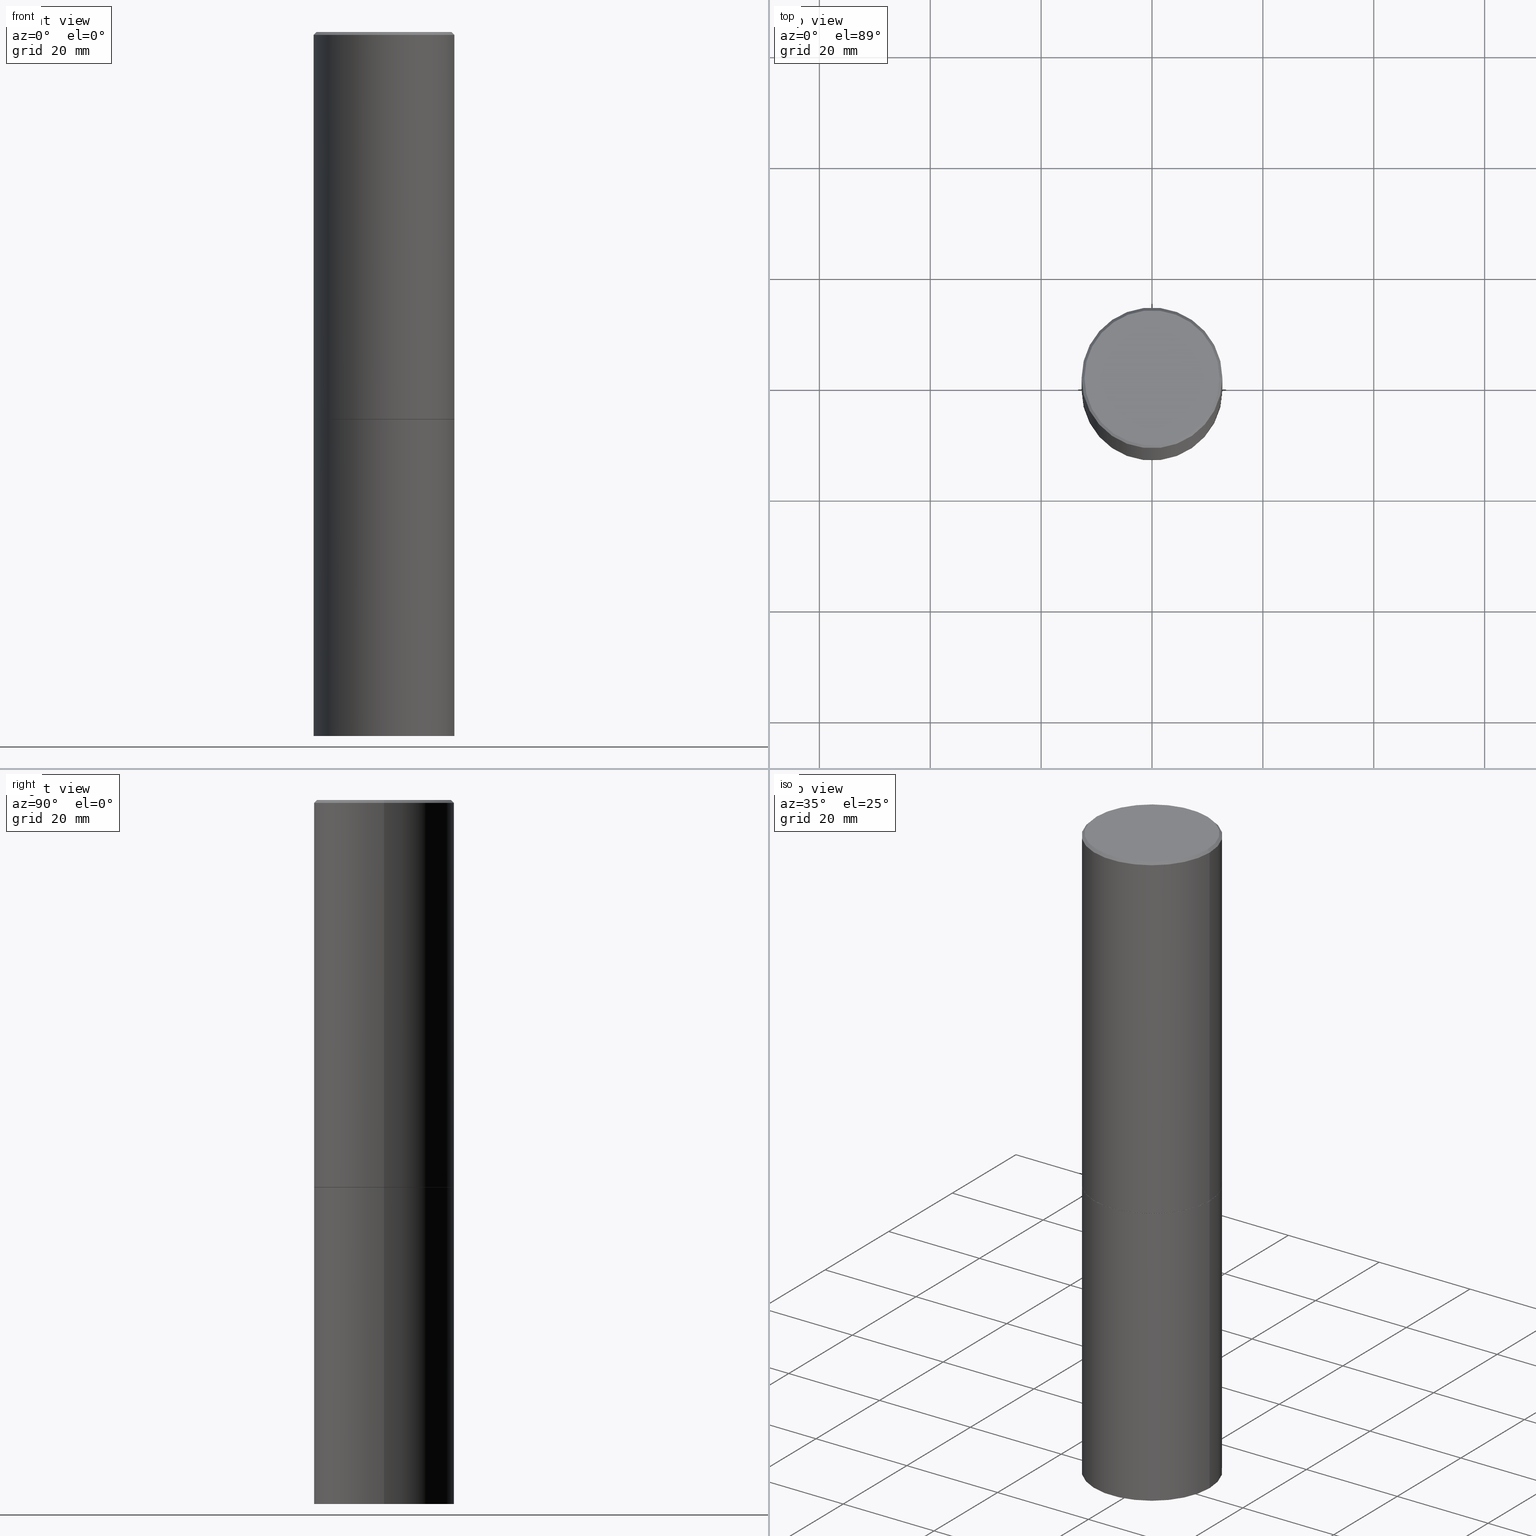
[diagram: canonical four-view strip — front | top / right | iso, engineering-drawing reading convention]
A machine part, canonical four-view strip (front | top / right | iso — engineering-drawing reading convention). The complete STEP part file that produces these views, byte-faithful:
ISO-10303-21;
HEADER;
FILE_DESCRIPTION (( 'STEP AP203' ),
    '1' );
FILE_NAME ('31819.STEP',
    '2024-02-27T13:43:03',
    ( '' ),
    ( '' ),
    'SwSTEP 2.0',
    'SolidWorks 2023',
    '' );
FILE_SCHEMA (( 'CONFIG_CONTROL_DESIGN' ));
ENDSEC;

DATA;
#1 = CARTESIAN_POINT ( 'NONE',  ( 6.725039217009125641E-29, -9.601573681818653015E-15, -2.750000000000000444 ) ) ;
#2 = ORIENTED_EDGE ( 'NONE', *, *, #330, .T. ) ;
#3 = DIRECTION ( 'NONE',  ( 1.000000000000000000, -6.982962677686266711E-15, 0.000000000000000000 ) ) ;
#4 = VERTEX_POINT ( 'NONE', #275 ) ;
#5 = EDGE_CURVE ( 'NONE', #101, #349, #46, .T. ) ;
#6 = CARTESIAN_POINT ( 'NONE',  ( -3.131554243005659264E-46, 4.471029511141341874E-32, 1.280553747030123384E-17 ) ) ;
#7 = VERTEX_POINT ( 'NONE', #15 ) ;
#8 = ORIENTED_EDGE ( 'NONE', *, *, #23, .F. ) ;
#9 = APPROVAL_DATE_TIME ( #162, #229 ) ;
#10 = CIRCLE ( 'NONE', #221, 0.5000000000000000000 ) ;
#11 = EDGE_CURVE ( 'NONE', #341, #71, #163, .T. ) ;
#12 = EDGE_LOOP ( 'NONE', ( #296, #347, #132, #8 ) ) ;
#13 = LOCAL_TIME ( 8, 43, 3.000000000000000000, #74 ) ;
#14 = APPROVAL_ROLE ( '' ) ;
#15 = CARTESIAN_POINT ( 'NONE',  ( 0.5000000000000001110, -1.308956353932294179E-14, -2.749000000000000110 ) ) ;
#16 = PERSON_AND_ORGANIZATION ( #25, #109 ) ;
#17 = EDGE_LOOP ( 'NONE', ( #210, #194 ) ) ;
#18 = APPROVAL_DATE_TIME ( #274, #286 ) ;
#19 = CARTESIAN_POINT ( 'NONE',  ( 0.4999999999999996114, -3.500078625662626318E-15, -0.02000000000000010797 ) ) ;
#20 = CARTESIAN_POINT ( 'NONE',  ( 1.222734403092568523E-28, -1.745740669421572989E-14, -5.000000000000000000 ) ) ;
#21 = DIRECTION ( 'NONE',  ( -2.445468806185136597E-29, 3.491481338843145583E-15, 1.000000000000000000 ) ) ;
#22 = DIRECTION ( 'NONE',  ( -2.445468806185136877E-29, 3.491481338843145188E-15, 1.000000000000000000 ) ) ;
#23 = EDGE_CURVE ( 'NONE', #7, #349, #48, .T. ) ;
#24 = SHAPE_DEFINITION_REPRESENTATION ( #122, #269 ) ;
#25 = PERSON ( 'UNSPECIFIED', 'UNSPECIFIED', 'UNSPECIFIED', ('UNSPECIFIED'), ('UNSPECIFIED'), ('UNSPECIFIED') ) ;
#26 = CARTESIAN_POINT ( 'NONE',  ( -0.4999999999999996114, 3.421651712066267296E-15, -0.02000000000000010797 ) ) ;
#27 = CARTESIAN_POINT ( 'NONE',  ( 0.000000000000000000, 0.000000000000000000, 0.000000000000000000 ) ) ;
#28 = ADVANCED_FACE ( 'NONE', ( #76 ), #95, .T. ) ;
#29 = DIRECTION ( 'NONE',  ( -2.445468806185136597E-29, 3.491481338843145583E-15, 1.000000000000000000 ) ) ;
#30 = APPROVAL_PERSON_ORGANIZATION ( #264, #166, #142 ) ;
#31 = CARTESIAN_POINT ( 'NONE',  ( 0.5000000000000000000, -1.309305502066178321E-14, -2.750000000000000000 ) ) ;
#32 = APPLICATION_CONTEXT ( 'configuration controlled 3d designs of mechanical parts and assemblies' ) ;
#33 = EDGE_LOOP ( 'NONE', ( #208, #343 ) ) ;
#34 = PRODUCT ( '31819', '31819', '', ( #209 ) ) ;
#35 = ADVANCED_FACE ( 'NONE', ( #196 ), #303, .F. ) ;
#36 = DIRECTION ( 'NONE',  ( 1.000000000000000000, -6.982962677686266711E-15, 0.000000000000000000 ) ) ;
#37 = ORIENTED_EDGE ( 'NONE', *, *, #340, .T. ) ;
#38 = VECTOR ( 'NONE', #322, 39.37007874015748143 ) ;
#39 = DIRECTION ( 'NONE',  ( 1.000000000000000000, -6.982962677686269077E-15, 0.000000000000000000 ) ) ;
#40 = LOCAL_TIME ( 8, 43, 3.000000000000000000, #358 ) ;
#41 = ORIENTED_EDGE ( 'NONE', *, *, #333, .T. ) ;
#42 = EDGE_CURVE ( 'NONE', #4, #341, #276, .T. ) ;
#43 = DATE_TIME_ROLE ( 'creation_date' ) ;
#44 = EDGE_LOOP ( 'NONE', ( #192, #219, #67, #106 ) ) ;
#45 = CALENDAR_DATE ( 2024, 27, 2 ) ;
#46 = LINE ( 'NONE', #19, #202 ) ;
#47 = PERSON_AND_ORGANIZATION_ROLE ( 'design_owner' ) ;
#48 = LINE ( 'NONE', #161, #317 ) ;
#49 = CC_DESIGN_PERSON_AND_ORGANIZATION_ASSIGNMENT ( #96, #105, ( #84 ) ) ;
#50 = CALENDAR_DATE ( 2024, 27, 2 ) ;
#51 = VERTEX_POINT ( 'NONE', #190 ) ;
#52 = CARTESIAN_POINT ( 'NONE',  ( 6.725039217009124520E-29, -9.601573681818649859E-15, -2.750000000000000000 ) ) ;
#53 =( GEOMETRIC_REPRESENTATION_CONTEXT ( 3 ) GLOBAL_UNCERTAINTY_ASSIGNED_CONTEXT ( ( #336 ) ) GLOBAL_UNIT_ASSIGNED_CONTEXT ( ( #366, #227, #86 ) ) REPRESENTATION_CONTEXT ( 'NONE', 'WORKASPACE' ) );
#54 = CARTESIAN_POINT ( 'NONE',  ( -0.5000000000000000000, 3.552713678800500929E-15, -2.459467545127452891E-29 ) ) ;
#55 = DIRECTION ( 'NONE',  ( 2.438088387897960049E-29, -3.491481338843145188E-15, -1.000000000000000000 ) ) ;
#56 = DIRECTION ( 'NONE',  ( 1.000000000000000000, -6.982962677686266711E-15, 0.000000000000000000 ) ) ;
#57 = CIRCLE ( 'NONE', #260, 0.4799999999999995381 ) ;
#58 = LOCAL_TIME ( 8, 43, 3.000000000000000000, #98 ) ;
#59 = CARTESIAN_POINT ( 'NONE',  ( 3.491481338843255234E-15, 0.4999999999999825140, -5.000000000000002665 ) ) ;
#60 = DIRECTION ( 'NONE',  ( -2.445468806185136597E-29, 3.491481338843145583E-15, 1.000000000000000000 ) ) ;
#61 = ORIENTED_EDGE ( 'NONE', *, *, #42, .F. ) ;
#62 = AXIS2_PLACEMENT_3D ( 'NONE', #203, #108, #110 ) ;
#63 = CARTESIAN_POINT ( 'NONE',  ( 0.4999999999999996114, -3.500078625662626318E-15, -0.02000000000000010797 ) ) ;
#64 = DIRECTION ( 'NONE',  ( -2.445468806185136597E-29, 3.491481338843145583E-15, 1.000000000000000000 ) ) ;
#65 = EDGE_LOOP ( 'NONE', ( #185, #37, #187, #323 ) ) ;
#66 = APPROVAL_ROLE ( '' ) ;
#67 = ORIENTED_EDGE ( 'NONE', *, *, #313, .T. ) ;
#68 = PERSON_AND_ORGANIZATION ( #25, #109 ) ;
#69 = DIRECTION ( 'NONE',  ( 2.438088387897960049E-29, -3.491481338843145188E-15, -1.000000000000000000 ) ) ;
#70 = PERSON_AND_ORGANIZATION ( #25, #109 ) ;
#71 = VERTEX_POINT ( 'NONE', #213 ) ;
#72 = ADVANCED_FACE ( 'NONE', ( #129 ), #239, .T. ) ;
#73 = ORIENTED_EDGE ( 'NONE', *, *, #111, .F. ) ;
#74 = COORDINATED_UNIVERSAL_TIME_OFFSET ( 5, 0, .BEHIND. ) ;
#75 = ORIENTED_EDGE ( 'NONE', *, *, #5, .F. ) ;
#76 = FACE_OUTER_BOUND ( 'NONE', #44, .T. ) ;
#77 = DIRECTION ( 'NONE',  ( 1.000000000000000000, -6.982962677686269077E-15, 0.000000000000000000 ) ) ;
#78 = AXIS2_PLACEMENT_3D ( 'NONE', #244, #272, #270 ) ;
#79 = EDGE_CURVE ( 'NONE', #228, #349, #256, .T. ) ;
#80 = FACE_OUTER_BOUND ( 'NONE', #243, .T. ) ;
#81 = DIRECTION ( 'NONE',  ( 0.7071067811864509833, -2.468850131081245741E-15, 0.7071067811866440511 ) ) ;
#82 = CARTESIAN_POINT ( 'NONE',  ( 6.725039217009124520E-29, -9.601573681818649859E-15, -2.750000000000000000 ) ) ;
#83 = AXIS2_PLACEMENT_3D ( 'NONE', #189, #135, #357 ) ;
#84 = SECURITY_CLASSIFICATION ( '', '', #268 ) ;
#85 = DIRECTION ( 'NONE',  ( 1.000000000000000000, -6.982962677686267499E-15, 4.876176775795936353E-29 ) ) ;
#86 =( NAMED_UNIT ( * ) SI_UNIT ( $, .STERADIAN. ) SOLID_ANGLE_UNIT ( ) );
#87 = ORIENTED_EDGE ( 'NONE', *, *, #259, .F. ) ;
#88 = ORIENTED_EDGE ( 'NONE', *, *, #316, .F. ) ;
#89 = ADVANCED_FACE ( 'NONE', ( #103 ), #211, .F. ) ;
#90 = AXIS2_PLACEMENT_3D ( 'NONE', #249, #21, #107 ) ;
#91 = PRODUCT_DEFINITION_FORMATION_WITH_SPECIFIED_SOURCE ( 'ANY', '', #34, .NOT_KNOWN. ) ;
#92 = APPLICATION_PROTOCOL_DEFINITION ( 'international standard', 'config_control_design', 1994, #32 ) ;
#93 = EDGE_LOOP ( 'NONE', ( #61, #217 ) ) ;
#94 = VERTEX_POINT ( 'NONE', #335 ) ;
#95 = CONICAL_SURFACE ( 'NONE', #83, 0.4999999999999996114, 0.7853981633974468357 ) ;
#96 = PERSON_AND_ORGANIZATION ( #25, #109 ) ;
#97 = DIRECTION ( 'NONE',  ( 1.000000000000000000, -6.982962677686266711E-15, 4.876176775795935793E-29 ) ) ;
#98 = COORDINATED_UNIVERSAL_TIME_OFFSET ( 5, 0, .BEHIND. ) ;
#99 = ORIENTED_EDGE ( 'NONE', *, *, #184, .F. ) ;
#100 = ADVANCED_FACE ( 'NONE', ( #143 ), #255, .T. ) ;
#101 = VERTEX_POINT ( 'NONE', #306 ) ;
#102 = CALENDAR_DATE ( 2024, 27, 2 ) ;
#103 = FACE_OUTER_BOUND ( 'NONE', #17, .T. ) ;
#104 = LOCAL_TIME ( 8, 43, 3.000000000000000000, #188 ) ;
#105 = PERSON_AND_ORGANIZATION_ROLE ( 'classification_officer' ) ;
#106 = ORIENTED_EDGE ( 'NONE', *, *, #212, .F. ) ;
#107 = DIRECTION ( 'NONE',  ( 1.000000000000000000, -6.982962677686266711E-15, 4.876176775795935793E-29 ) ) ;
#108 = DIRECTION ( 'NONE',  ( 2.438088387897960049E-29, -3.491481338843145188E-15, -1.000000000000000000 ) ) ;
#109 = ORGANIZATION ( 'UNSPECIFIED', 'UNSPECIFIED', '' ) ;
#110 = DIRECTION ( 'NONE',  ( -1.000000000000000000, 6.982962677686265922E-15, -4.876176775795935793E-29 ) ) ;
#111 = EDGE_CURVE ( 'NONE', #7, #71, #115, .T. ) ;
#112 = CC_DESIGN_PERSON_AND_ORGANIZATION_ASSIGNMENT ( #136, #131, ( #91 ) ) ;
#113 = DIRECTION ( 'NONE',  ( -0.7071067811865464625, 2.468850131082245622E-15, -0.7071067811865485719 ) ) ;
#114 = FACE_OUTER_BOUND ( 'NONE', #12, .T. ) ;
#115 = CIRCLE ( 'NONE', #365, 0.5000000000000001110 ) ;
#116 = FACE_OUTER_BOUND ( 'NONE', #151, .T. ) ;
#117 = PRODUCT_DEFINITION ( 'UNKNOWN', '', #91, #204 ) ;
#118 = CARTESIAN_POINT ( 'NONE',  ( 4.890937612370299433E-31, -6.982962677686328587E-17, -0.02000000000000010797 ) ) ;
#119 = VERTEX_POINT ( 'NONE', #364 ) ;
#120 = DIRECTION ( 'NONE',  ( 2.445468806185136597E-29, -3.491481338843145583E-15, -1.000000000000000000 ) ) ;
#121 = ORIENTED_EDGE ( 'NONE', *, *, #278, .F. ) ;
#122 = PRODUCT_DEFINITION_SHAPE ( 'NONE', 'NONE',  #117 ) ;
#123 = AXIS2_PLACEMENT_3D ( 'NONE', #321, #69, #297 ) ;
#124 = CONICAL_SURFACE ( 'NONE', #346, 0.4989999999999999991, 0.7853981633973118326 ) ;
#125 = DIRECTION ( 'NONE',  ( -2.445468806185136597E-29, 3.491481338843145583E-15, 1.000000000000000000 ) ) ;
#126 = ADVANCED_FACE ( 'NONE', ( #283 ), #175, .F. ) ;
#127 = CC_DESIGN_DATE_AND_TIME_ASSIGNMENT ( #186, #295, ( #84 ) ) ;
#128 = ORIENTED_EDGE ( 'NONE', *, *, #79, .T. ) ;
#129 = FACE_OUTER_BOUND ( 'NONE', #351, .T. ) ;
#130 = AXIS2_PLACEMENT_3D ( 'NONE', #200, #147, #199 ) ;
#131 = PERSON_AND_ORGANIZATION_ROLE ( 'creator' ) ;
#132 = ORIENTED_EDGE ( 'NONE', *, *, #313, .F. ) ;
#133 = DIRECTION ( 'NONE',  ( -2.445468806185136597E-29, 3.491481338843145583E-15, 1.000000000000000000 ) ) ;
#134 = DIMENSIONAL_EXPONENTS ( 1.000000000000000000, 0.000000000000000000, 0.000000000000000000, 0.000000000000000000, 0.000000000000000000, 0.000000000000000000, 0.000000000000000000 ) ;
#135 = DIRECTION ( 'NONE',  ( 2.445468806185136597E-29, -3.491481338843145583E-15, -1.000000000000000000 ) ) ;
#136 = PERSON_AND_ORGANIZATION ( #25, #109 ) ;
#137 = AXIS2_PLACEMENT_3D ( 'NONE', #52, #246, #169 ) ;
#138 = AXIS2_PLACEMENT_3D ( 'NONE', #314, #230, #345 ) ;
#139 = DIRECTION ( 'NONE',  ( 0.7071067811865464625, -7.319954787623252890E-15, -0.7071067811865485719 ) ) ;
#140 = CYLINDRICAL_SURFACE ( 'NONE', #90, 0.5000000000000000000 ) ;
#141 = DIRECTION ( 'NONE',  ( -2.445468806185136877E-29, 3.491481338843145188E-15, 1.000000000000000000 ) ) ;
#142 = APPROVAL_ROLE ( '' ) ;
#143 = FACE_OUTER_BOUND ( 'NONE', #293, .T. ) ;
#144 = EDGE_CURVE ( 'NONE', #101, #300, #232, .T. ) ;
#145 = DIRECTION ( 'NONE',  ( -2.445468806185136597E-29, 3.491481338843145583E-15, 1.000000000000000000 ) ) ;
#146 = APPROVAL_DATE_TIME ( #305, #166 ) ;
#147 = DIRECTION ( 'NONE',  ( -2.445468806185136597E-29, 3.491481338843145583E-15, 1.000000000000000000 ) ) ;
#148 = DIRECTION ( 'NONE',  ( -2.445468806185136597E-29, 3.491481338843145583E-15, 1.000000000000000000 ) ) ;
#149 = CARTESIAN_POINT ( 'NONE',  ( 6.725039217009125641E-29, -9.601573681818653015E-15, -2.750000000000000444 ) ) ;
#150 = ADVANCED_FACE ( 'NONE', ( #114 ), #362, .T. ) ;
#151 = EDGE_LOOP ( 'NONE', ( #75, #88, #236, #128 ) ) ;
#152 = AXIS2_PLACEMENT_3D ( 'NONE', #59, #55, #334 ) ;
#153 = CC_DESIGN_SECURITY_CLASSIFICATION ( #84, ( #91 ) ) ;
#154 = DIRECTION ( 'NONE',  ( -1.000000000000000000, 6.982962677686266711E-15, 0.000000000000000000 ) ) ;
#155 = ORIENTED_EDGE ( 'NONE', *, *, #290, .F. ) ;
#156 = ORIENTED_EDGE ( 'NONE', *, *, #206, .T. ) ;
#157 = APPLICATION_PROTOCOL_DEFINITION ( 'international standard', 'config_control_design', 1994, #285 ) ;
#158 = DIRECTION ( 'NONE',  ( -2.445468806185136597E-29, 3.491481338843145583E-15, 1.000000000000000000 ) ) ;
#159 = VECTOR ( 'NONE', #81, 39.37007874015748143 ) ;
#160 = ADVANCED_FACE ( 'NONE', ( #80 ), #197, .T. ) ;
#161 = CARTESIAN_POINT ( 'NONE',  ( 0.4999999999999998335, -3.491481338843132566E-15, 2.438088387897967336E-29 ) ) ;
#162 = DATE_AND_TIME ( #102, #58 ) ;
#163 = LINE ( 'NONE', #329, #38 ) ;
#164 = DIRECTION ( 'NONE',  ( -2.445468806185136877E-29, 3.491481338843145188E-15, 1.000000000000000000 ) ) ;
#165 = EDGE_CURVE ( 'NONE', #71, #7, #287, .T. ) ;
#166 = APPROVAL ( #242, 'UNSPECIFIED' ) ;
#167 = AXIS2_PLACEMENT_3D ( 'NONE', #171, #205, #85 ) ;
#168 = APPROVAL_PERSON_ORGANIZATION ( #68, #286, #66 ) ;
#169 = DIRECTION ( 'NONE',  ( 1.000000000000000000, -6.982962677686265922E-15, 4.876176775795935793E-29 ) ) ;
#170 = DIRECTION ( 'NONE',  ( -2.445468806185136877E-29, 3.491481338843145188E-15, 1.000000000000000000 ) ) ;
#171 = CARTESIAN_POINT ( 'NONE',  ( 0.000000000000000000, 0.000000000000000000, 0.000000000000000000 ) ) ;
#172 = CARTESIAN_POINT ( 'NONE',  ( 0.5000000000000000000, -3.491481338843133355E-15, 2.438088387897967896E-29 ) ) ;
#173 = CIRCLE ( 'NONE', #267, 0.5000000000000000000 ) ;
#174 = CONICAL_SURFACE ( 'NONE', #261, 0.4999999999999996114, 0.7853981633974468357 ) ;
#175 = PLANE ( 'NONE',  #62 ) ;
#176 = DIRECTION ( 'NONE',  ( -2.445468806185136597E-29, 3.491481338843145583E-15, 1.000000000000000000 ) ) ;
#177 = CLOSED_SHELL ( 'NONE', ( #72, #238, #126, #263 ) ) ;
#178 = ORIENTED_EDGE ( 'NONE', *, *, #42, .T. ) ;
#179 = AXIS2_PLACEMENT_3D ( 'NONE', #214, #133, #97 ) ;
#180 = CIRCLE ( 'NONE', #304, 0.5000000000000000000 ) ;
#181 = CARTESIAN_POINT ( 'NONE',  ( 4.890937612370299433E-31, -6.982962677686328587E-17, -0.02000000000000010797 ) ) ;
#182 = ORIENTED_EDGE ( 'NONE', *, *, #23, .T. ) ;
#183 = DIRECTION ( 'NONE',  ( 1.000000000000000000, -6.982962677686266711E-15, 4.876036955247133888E-29 ) ) ;
#184 = EDGE_CURVE ( 'NONE', #119, #328, #363, .T. ) ;
#185 = ORIENTED_EDGE ( 'NONE', *, *, #11, .F. ) ;
#186 = DATE_AND_TIME ( #218, #104 ) ;
#187 = ORIENTED_EDGE ( 'NONE', *, *, #259, .T. ) ;
#188 = COORDINATED_UNIVERSAL_TIME_OFFSET ( 5, 0, .BEHIND. ) ;
#189 = CARTESIAN_POINT ( 'NONE',  ( 4.890937612370299433E-31, -6.982962677686328587E-17, -0.02000000000000010797 ) ) ;
#190 = CARTESIAN_POINT ( 'NONE',  ( -0.5000000000000000000, -9.976776509216688154E-15, -5.000000000000000000 ) ) ;
#191 = AXIS2_PLACEMENT_3D ( 'NONE', #292, #176, #3 ) ;
#192 = ORIENTED_EDGE ( 'NONE', *, *, #144, .F. ) ;
#193 = APPROVAL_STATUS ( 'not_yet_approved' ) ;
#194 = ORIENTED_EDGE ( 'NONE', *, *, #144, .T. ) ;
#195 = EDGE_CURVE ( 'NONE', #119, #51, #10, .T. ) ;
#196 = FACE_OUTER_BOUND ( 'NONE', #93, .T. ) ;
#197 = CONICAL_SURFACE ( 'NONE', #240, 0.4989999999999999991, 0.7853981633973118326 ) ;
#198 = CIRCLE ( 'NONE', #191, 0.5000000000000000000 ) ;
#199 = DIRECTION ( 'NONE',  ( 1.000000000000000000, -6.982962677686265133E-15, 0.000000000000000000 ) ) ;
#200 = CARTESIAN_POINT ( 'NONE',  ( 6.722593748202941159E-29, -9.598082200479808430E-15, -2.749000000000000110 ) ) ;
#201 = CARTESIAN_POINT ( 'NONE',  ( -0.4999999999999998335, 3.552713678800499746E-15, -2.459467545127452330E-29 ) ) ;
#202 = VECTOR ( 'NONE', #139, 39.37007874015748143 ) ;
#203 = CARTESIAN_POINT ( 'NONE',  ( 3.491481338843200408E-15, 0.4999999999999903411, -2.750000000000001332 ) ) ;
#204 = DESIGN_CONTEXT ( 'detailed design', #285, 'design' ) ;
#205 = DIRECTION ( 'NONE',  ( -2.445468806185136597E-29, 3.491481338843145583E-15, 1.000000000000000000 ) ) ;
#206 = EDGE_CURVE ( 'NONE', #94, #328, #173, .T. ) ;
#207 = DIRECTION ( 'NONE',  ( 1.000000000000000000, -6.982962677686266711E-15, 0.000000000000000000 ) ) ;
#208 = ORIENTED_EDGE ( 'NONE', *, *, #195, .F. ) ;
#209 = MECHANICAL_CONTEXT ( 'NONE', #32, 'mechanical' ) ;
#210 = ORIENTED_EDGE ( 'NONE', *, *, #316, .T. ) ;
#211 = PLANE ( 'NONE',  #123 ) ;
#212 = EDGE_CURVE ( 'NONE', #300, #228, #310, .T. ) ;
#213 = CARTESIAN_POINT ( 'NONE',  ( -0.5000000000000001110, -1.281242234827831779E-15, -2.749000000000000110 ) ) ;
#214 = CARTESIAN_POINT ( 'NONE',  ( 0.000000000000000000, 0.000000000000000000, 0.000000000000000000 ) ) ;
#215 = AXIS2_PLACEMENT_3D ( 'NONE', #181, #288, #207 ) ;
#216 = CC_DESIGN_APPROVAL ( #286, ( #91 ) ) ;
#217 = ORIENTED_EDGE ( 'NONE', *, *, #340, .F. ) ;
#218 = CALENDAR_DATE ( 2024, 27, 2 ) ;
#219 = ORIENTED_EDGE ( 'NONE', *, *, #5, .T. ) ;
#220 = CARTESIAN_POINT ( 'NONE',  ( -3.131554243005659264E-46, 4.471029511141341874E-32, 1.280553747030123384E-17 ) ) ;
#221 = AXIS2_PLACEMENT_3D ( 'NONE', #20, #224, #282 ) ;
#222 = DIRECTION ( 'NONE',  ( -2.445468806185136597E-29, 3.491481338843145583E-15, 1.000000000000000000 ) ) ;
#223 = CALENDAR_DATE ( 2024, 27, 2 ) ;
#224 = DIRECTION ( 'NONE',  ( -2.445468806185136597E-29, 3.491481338843145583E-15, 1.000000000000000000 ) ) ;
#225 = DIRECTION ( 'NONE',  ( -2.445468806185136597E-29, 3.491481338843145583E-15, 1.000000000000000000 ) ) ;
#226 = LINE ( 'NONE', #339, #159 ) ;
#227 =( NAMED_UNIT ( * ) PLANE_ANGLE_UNIT ( ) SI_UNIT ( $, .RADIAN. ) );
#228 = VERTEX_POINT ( 'NONE', #277 ) ;
#229 = APPROVAL ( #271, 'UNSPECIFIED' ) ;
#230 = DIRECTION ( 'NONE',  ( 0.000000000000000000, 0.000000000000000000, 1.000000000000000000 ) ) ;
#231 = ORIENTED_EDGE ( 'NONE', *, *, #11, .T. ) ;
#232 = CIRCLE ( 'NONE', #348, 0.4799999999999995381 ) ;
#233 = CC_DESIGN_APPROVAL ( #229, ( #117 ) ) ;
#234 = MANIFOLD_SOLID_BREP ( 'Body-Move/Copy2[1]', #177 ) ;
#235 = DIRECTION ( 'NONE',  ( 1.000000000000000000, -6.982962677686269077E-15, 0.000000000000000000 ) ) ;
#236 = ORIENTED_EDGE ( 'NONE', *, *, #212, .T. ) ;
#237 = MANIFOLD_SOLID_BREP ( 'Body-Move/Copy2[2]', #337 ) ;
#238 = ADVANCED_FACE ( 'NONE', ( #307 ), #331, .T. ) ;
#239 = CYLINDRICAL_SURFACE ( 'NONE', #179, 0.5000000000000000000 ) ;
#240 = AXIS2_PLACEMENT_3D ( 'NONE', #253, #60, #77 ) ;
#241 = APPROVAL_PERSON_ORGANIZATION ( #16, #229, #14 ) ;
#242 = APPROVAL_STATUS ( 'not_yet_approved' ) ;
#243 = EDGE_LOOP ( 'NONE', ( #178, #231, #73, #87 ) ) ;
#244 = CARTESIAN_POINT ( 'NONE',  ( 6.725039217009125641E-29, -9.601573681818653015E-15, -2.750000000000000444 ) ) ;
#245 = CC_DESIGN_PERSON_AND_ORGANIZATION_ASSIGNMENT ( #70, #326, ( #117 ) ) ;
#246 = DIRECTION ( 'NONE',  ( -2.438088387897960049E-29, 3.491481338843145188E-15, 1.000000000000000000 ) ) ;
#247 = PERSON_AND_ORGANIZATION ( #25, #109 ) ;
#248 = ORIENTED_EDGE ( 'NONE', *, *, #195, .T. ) ;
#249 = CARTESIAN_POINT ( 'NONE',  ( 0.000000000000000000, 0.000000000000000000, 0.000000000000000000 ) ) ;
#250 = DIRECTION ( 'NONE',  ( 1.000000000000000000, -6.982962677686265133E-15, 0.000000000000000000 ) ) ;
#251 = VECTOR ( 'NONE', #170, 39.37007874015748143 ) ;
#252 = DIRECTION ( 'NONE',  ( -2.445468806185136597E-29, 3.491481338843145583E-15, 1.000000000000000000 ) ) ;
#253 = CARTESIAN_POINT ( 'NONE',  ( 6.725039217009125641E-29, -9.601573681818653015E-15, -2.750000000000000444 ) ) ;
#254 = CC_DESIGN_DATE_AND_TIME_ASSIGNMENT ( #320, #43, ( #117 ) ) ;
#255 = CYLINDRICAL_SURFACE ( 'NONE', #167, 0.4999999999999998335 ) ;
#256 = CIRCLE ( 'NONE', #338, 0.4999999999999996114 ) ;
#257 = LENGTH_MEASURE_WITH_UNIT ( LENGTH_MEASURE( 0.02539999999999999897 ), #315 );
#258 = ORIENTED_EDGE ( 'NONE', *, *, #330, .F. ) ;
#259 = EDGE_CURVE ( 'NONE', #4, #7, #226, .T. ) ;
#260 = AXIS2_PLACEMENT_3D ( 'NONE', #6, #125, #183 ) ;
#261 = AXIS2_PLACEMENT_3D ( 'NONE', #118, #120, #154 ) ;
#262 = EDGE_LOOP ( 'NONE', ( #121, #41, #302, #289 ) ) ;
#263 = ADVANCED_FACE ( 'NONE', ( #311 ), #140, .T. ) ;
#264 = PERSON_AND_ORGANIZATION ( #25, #109 ) ;
#265 = PERSON_AND_ORGANIZATION ( #25, #109 ) ;
#266 = ORIENTED_EDGE ( 'NONE', *, *, #278, .T. ) ;
#267 = AXIS2_PLACEMENT_3D ( 'NONE', #82, #252, #56 ) ;
#268 = SECURITY_CLASSIFICATION_LEVEL ( 'unclassified' ) ;
#269 = ADVANCED_BREP_SHAPE_REPRESENTATION ( '31819', ( #234, #237, #138 ), #53 ) ;
#270 = DIRECTION ( 'NONE',  ( 1.000000000000000000, -6.982962677686269077E-15, 0.000000000000000000 ) ) ;
#271 = APPROVAL_STATUS ( 'not_yet_approved' ) ;
#272 = DIRECTION ( 'NONE',  ( -2.445468806185136597E-29, 3.491481338843145583E-15, 1.000000000000000000 ) ) ;
#273 = PRODUCT_RELATED_PRODUCT_CATEGORY ( 'detail', '', ( #34 ) ) ;
#274 = DATE_AND_TIME ( #50, #361 ) ;
#275 = CARTESIAN_POINT ( 'NONE',  ( 0.4989999999999999991, -1.308607205798410036E-14, -2.750000000000000444 ) ) ;
#276 = CIRCLE ( 'NONE', #78, 0.4989999999999999991 ) ;
#277 = CARTESIAN_POINT ( 'NONE',  ( -0.4999999999999996114, 3.421651712066267296E-15, -0.02000000000000010797 ) ) ;
#278 = EDGE_CURVE ( 'NONE', #51, #94, #359, .T. ) ;
#279 = LINE ( 'NONE', #201, #299 ) ;
#280 = CARTESIAN_POINT ( 'NONE',  ( 6.722593748202941159E-29, -9.598082200479808430E-15, -2.749000000000000110 ) ) ;
#281 = CIRCLE ( 'NONE', #325, 0.4989999999999999991 ) ;
#282 = DIRECTION ( 'NONE',  ( 1.000000000000000000, -6.982962677686266711E-15, 0.000000000000000000 ) ) ;
#283 = FACE_OUTER_BOUND ( 'NONE', #294, .T. ) ;
#284 = CARTESIAN_POINT ( 'NONE',  ( 1.222734403092568523E-28, -1.745740669421572989E-14, -5.000000000000000000 ) ) ;
#285 = APPLICATION_CONTEXT ( 'configuration controlled 3d designs of mechanical parts and assemblies' ) ;
#286 = APPROVAL ( #193, 'UNSPECIFIED' ) ;
#287 = CIRCLE ( 'NONE', #130, 0.5000000000000001110 ) ;
#288 = DIRECTION ( 'NONE',  ( -2.445468806185136597E-29, 3.491481338843145583E-15, 1.000000000000000000 ) ) ;
#289 = ORIENTED_EDGE ( 'NONE', *, *, #206, .F. ) ;
#290 = EDGE_CURVE ( 'NONE', #71, #228, #279, .T. ) ;
#291 = CARTESIAN_POINT ( 'NONE',  ( -0.4989999999999999991, -6.050666976027529114E-15, -2.750000000000000444 ) ) ;
#292 = CARTESIAN_POINT ( 'NONE',  ( 6.725039217009124520E-29, -9.601573681818649859E-15, -2.750000000000000000 ) ) ;
#293 = EDGE_LOOP ( 'NONE', ( #155, #318, #182, #298 ) ) ;
#294 = EDGE_LOOP ( 'NONE', ( #2, #156 ) ) ;
#295 = DATE_TIME_ROLE ( 'classification_date' ) ;
#296 = ORIENTED_EDGE ( 'NONE', *, *, #111, .T. ) ;
#297 = DIRECTION ( 'NONE',  ( -1.000000000000000000, 6.982962677686265922E-15, -4.876176775795935793E-29 ) ) ;
#298 = ORIENTED_EDGE ( 'NONE', *, *, #79, .F. ) ;
#299 = VECTOR ( 'NONE', #141, 39.37007874015748143 ) ;
#300 = VERTEX_POINT ( 'NONE', #308 ) ;
#301 = COORDINATED_UNIVERSAL_TIME_OFFSET ( 5, 0, .BEHIND. ) ;
#302 = ORIENTED_EDGE ( 'NONE', *, *, #184, .T. ) ;
#303 = PLANE ( 'NONE',  #137 ) ;
#304 = AXIS2_PLACEMENT_3D ( 'NONE', #284, #29, #36 ) ;
#305 = DATE_AND_TIME ( #223, #40 ) ;
#306 = CARTESIAN_POINT ( 'NONE',  ( 0.4799999999999995381, -3.396558832296479338E-15, 1.280553747032483033E-17 ) ) ;
#307 = FACE_OUTER_BOUND ( 'NONE', #33, .T. ) ;
#308 = CARTESIAN_POINT ( 'NONE',  ( -0.4799999999999995381, 3.386736898677836041E-15, 1.280553747027767124E-17 ) ) ;
#309 = CIRCLE ( 'NONE', #215, 0.4999999999999996114 ) ;
#310 = LINE ( 'NONE', #26, #344 ) ;
#311 = FACE_OUTER_BOUND ( 'NONE', #262, .T. ) ;
#312 = CC_DESIGN_PERSON_AND_ORGANIZATION_ASSIGNMENT ( #265, #47, ( #34 ) ) ;
#313 = EDGE_CURVE ( 'NONE', #349, #228, #309, .T. ) ;
#314 = CARTESIAN_POINT ( 'NONE',  ( 0.000000000000000000, 0.000000000000000000, 0.000000000000000000 ) ) ;
#315 =( LENGTH_UNIT ( ) NAMED_UNIT ( * ) SI_UNIT ( $, .METRE. ) );
#316 = EDGE_CURVE ( 'NONE', #300, #101, #57, .T. ) ;
#317 = VECTOR ( 'NONE', #164, 39.37007874015748143 ) ;
#318 = ORIENTED_EDGE ( 'NONE', *, *, #165, .T. ) ;
#319 = CC_DESIGN_APPROVAL ( #166, ( #84 ) ) ;
#320 = DATE_AND_TIME ( #45, #13 ) ;
#321 = CARTESIAN_POINT ( 'NONE',  ( 3.351822085289404392E-15, 0.4799999999999995381, -1.669508273909557670E-15 ) ) ;
#322 = DIRECTION ( 'NONE',  ( -0.7071067811864509833, 7.493145998870005484E-15, 0.7071067811866440511 ) ) ;
#323 = ORIENTED_EDGE ( 'NONE', *, *, #165, .F. ) ;
#324 = AXIS2_PLACEMENT_3D ( 'NONE', #27, #222, #332 ) ;
#325 = AXIS2_PLACEMENT_3D ( 'NONE', #149, #148, #39 ) ;
#326 = PERSON_AND_ORGANIZATION_ROLE ( 'creator' ) ;
#327 = ADVANCED_FACE ( 'NONE', ( #342 ), #124, .T. ) ;
#328 = VERTEX_POINT ( 'NONE', #31 ) ;
#329 = CARTESIAN_POINT ( 'NONE',  ( -0.4989999999999999991, -6.055965430375752305E-15, -2.750000000000000444 ) ) ;
#330 = EDGE_CURVE ( 'NONE', #328, #94, #198, .T. ) ;
#331 = PLANE ( 'NONE',  #152 ) ;
#332 = DIRECTION ( 'NONE',  ( 1.000000000000000000, -6.982962677686267499E-15, 4.876176775795936353E-29 ) ) ;
#333 = EDGE_CURVE ( 'NONE', #51, #119, #180, .T. ) ;
#334 = DIRECTION ( 'NONE',  ( -1.000000000000000000, 6.982962677686265922E-15, -4.876176775795935793E-29 ) ) ;
#335 = CARTESIAN_POINT ( 'NONE',  ( -0.5000000000000000000, -9.976776509216688154E-15, -2.750000000000000000 ) ) ;
#336 = UNCERTAINTY_MEASURE_WITH_UNIT (LENGTH_MEASURE( 1.000000000000000082E-05 ), #366, 'distance_accuracy_value', 'NONE');
#337 = CLOSED_SHELL ( 'NONE', ( #160, #150, #28, #356, #100, #327, #35, #89 ) ) ;
#338 = AXIS2_PLACEMENT_3D ( 'NONE', #352, #158, #353 ) ;
#339 = CARTESIAN_POINT ( 'NONE',  ( 0.4989999999999999991, -1.308607205798410036E-14, -2.750000000000000444 ) ) ;
#340 = EDGE_CURVE ( 'NONE', #341, #4, #281, .T. ) ;
#341 = VERTEX_POINT ( 'NONE', #291 ) ;
#342 = FACE_OUTER_BOUND ( 'NONE', #65, .T. ) ;
#343 = ORIENTED_EDGE ( 'NONE', *, *, #333, .F. ) ;
#344 = VECTOR ( 'NONE', #113, 39.37007874015748143 ) ;
#345 = DIRECTION ( 'NONE',  ( 1.000000000000000000, 0.000000000000000000, 0.000000000000000000 ) ) ;
#346 = AXIS2_PLACEMENT_3D ( 'NONE', #1, #64, #235 ) ;
#347 = ORIENTED_EDGE ( 'NONE', *, *, #290, .T. ) ;
#348 = AXIS2_PLACEMENT_3D ( 'NONE', #220, #145, #360 ) ;
#349 = VERTEX_POINT ( 'NONE', #63 ) ;
#350 = CC_DESIGN_PERSON_AND_ORGANIZATION_ASSIGNMENT ( #247, #355, ( #91 ) ) ;
#351 = EDGE_LOOP ( 'NONE', ( #248, #266, #258, #99 ) ) ;
#352 = CARTESIAN_POINT ( 'NONE',  ( 4.890937612370299433E-31, -6.982962677686328587E-17, -0.02000000000000010797 ) ) ;
#353 = DIRECTION ( 'NONE',  ( 1.000000000000000000, -6.982962677686266711E-15, 0.000000000000000000 ) ) ;
#354 = VECTOR ( 'NONE', #22, 39.37007874015748143 ) ;
#355 = PERSON_AND_ORGANIZATION_ROLE ( 'design_supplier' ) ;
#356 = ADVANCED_FACE ( 'NONE', ( #116 ), #174, .T. ) ;
#357 = DIRECTION ( 'NONE',  ( -1.000000000000000000, 6.982962677686266711E-15, 0.000000000000000000 ) ) ;
#358 = COORDINATED_UNIVERSAL_TIME_OFFSET ( 5, 0, .BEHIND. ) ;
#359 = LINE ( 'NONE', #54, #251 ) ;
#360 = DIRECTION ( 'NONE',  ( 1.000000000000000000, -6.982962677686266711E-15, 4.876036955247133888E-29 ) ) ;
#361 = LOCAL_TIME ( 8, 43, 3.000000000000000000, #301 ) ;
#362 = CYLINDRICAL_SURFACE ( 'NONE', #324, 0.4999999999999998335 ) ;
#363 = LINE ( 'NONE', #172, #354 ) ;
#364 = CARTESIAN_POINT ( 'NONE',  ( 0.5000000000000000000, -2.094888803305886324E-14, -5.000000000000000000 ) ) ;
#365 = AXIS2_PLACEMENT_3D ( 'NONE', #280, #225, #250 ) ;
#366 =( CONVERSION_BASED_UNIT ( 'INCH', #257 ) LENGTH_UNIT ( ) NAMED_UNIT ( #134 ) );
ENDSEC;
END-ISO-10303-21;
